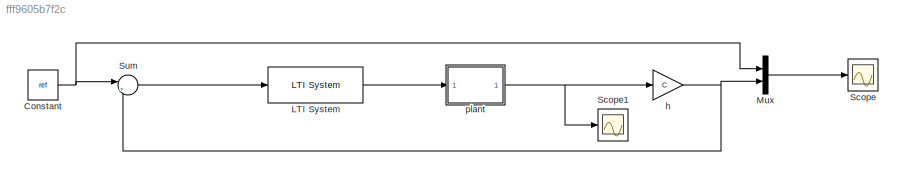
MODEL slx_fff9605b7f2c
KIND model
CONFIG AbsTol = auto
CONFIG EnableMultiTasking = off
CONFIG FixedStep = auto
CONFIG MaxStep = Tstep
CONFIG MinStep = auto
CONFIG RelTol = 1e-3
CONFIG SampleTimeConstraint = Unconstrained
CONFIG Solver = ode45
CONFIG SolverName = ode45
CONFIG StartTime = 0.0
CONFIG StopTime = Tfin
BLOCK [Constant] Constant
  Value = ref
BLOCK [Reference] LTI System  REF=cstblocks/LTI System
  Ports = [1, 1]
  SourceBlock = cstblocks/LTI System
  SourceProductBaseCode = CT
  SourceProductName = Control System Toolbox
  SourceType = LTI Block
BLOCK [Mux] Mux
  DisplayOption = bar
  Inputs = 2
  Ports = [2, 1]
BLOCK [Scope] Scope
  Floating = off
  NumInputPorts = 1
  Ports = [1]
  ScopeSpecificationString = Simulink.scopes.TimeScopeBlockCfg('CurrentConfiguration', extmgr.ConfigurationSet(extmgr.Configuration('Core','General UI',true),extmgr.Configuration('Core','Source UI',true),extmgr.Configuration('Sources','WiredSimulink',true),extmgr.Configuration('Visuals','Time Domain',true,'SerializedDisplays',{struct('MinYLimReal','-0.14603','MaxYLimReal','1.3143','YLabelReal','','MinYLimMag','0.00000','MaxYL...<+1409ch>
BLOCK [Scope] Scope1
  Floating = off
  NumInputPorts = 1
  Ports = [1]
  ScopeSpecificationString = Simulink.scopes.TimeScopeBlockCfg('CurrentConfiguration', extmgr.ConfigurationSet(extmgr.Configuration('Core','General UI',true),extmgr.Configuration('Core','Source UI',true),extmgr.Configuration('Sources','WiredSimulink',true,'DataLoggingVariableName','ScopeData1'),extmgr.Configuration('Visuals','Time Domain',true,'SerializedDisplays',{struct('MinYLimReal','-4.26819','MaxYLimReal','21.13096','YLa...<+1448ch>
BLOCK [Sum] Sum
  IconShape = round
  InputSameDT = off
  Inputs = |+-
  OutDataTypeStr = Inherit: Inherit via internal rule
  Ports = [2, 1]
  SaturateOnIntegerOverflow = off
BLOCK [Gain] h
  Gain = C
  Multiplication = Matrix(K*u)
  OutDataTypeStr = Inherit: Inherit via internal rule
  ParamDataTypeStr = Inherit: Inherit via internal rule
  SaturateOnIntegerOverflow = off
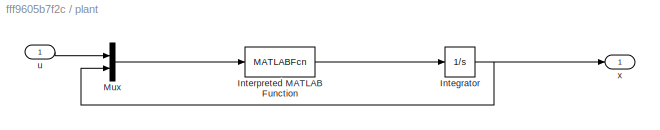
BLOCK [SubSystem] plant 
  Ports = [1, 1]
  RequestExecContextInheritance = off
BLOCK [Integrator] plant /Integrator
  InitialCondition = x0
  Ports = [1, 1]
BLOCK [MATLABFcn] plant /Interpreted MATLAB Function
  MATLABFcn = chua_fg
  Ports = [1, 1]
BLOCK [Mux] plant /Mux
  DisplayOption = bar
  Inputs = 2
  Ports = [2, 1]
BLOCK [Inport] plant /u
  IconDisplay = Port number
BLOCK [Outport] plant /x
  IconDisplay = Port number
NET Constant:1 -> Mux:1, Sum:1
LINE LTI System:1 -> plant :1
LINE Mux:1 -> Scope:1
LINE Sum:1 -> LTI System:1
NET h:1 -> Mux:2, Sum:2
NET plant /Integrator:1 -> plant /Mux:2, plant /x:1
LINE plant /Interpreted MATLAB Function:1 -> plant /Integrator:1
LINE plant /Mux:1 -> plant /Interpreted MATLAB Function:1
LINE plant /u:1 -> plant /Mux:1
NET plant :1 -> Scope1:1, h:1
note: NET lines group one-source signal fan-out (src -> all destinations, sorted); 1:1 wires keep LINE
